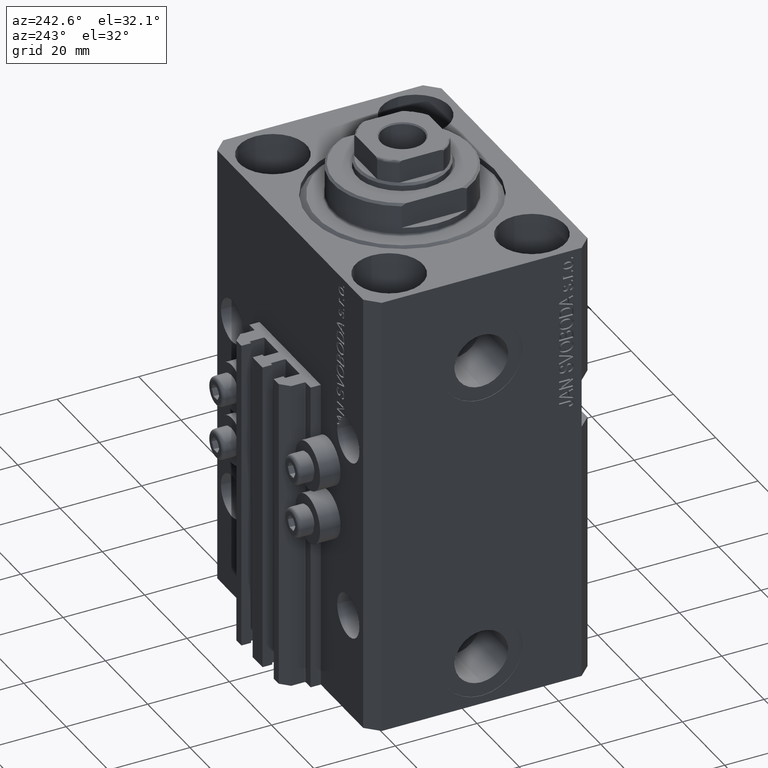
[diagram: clean part render]
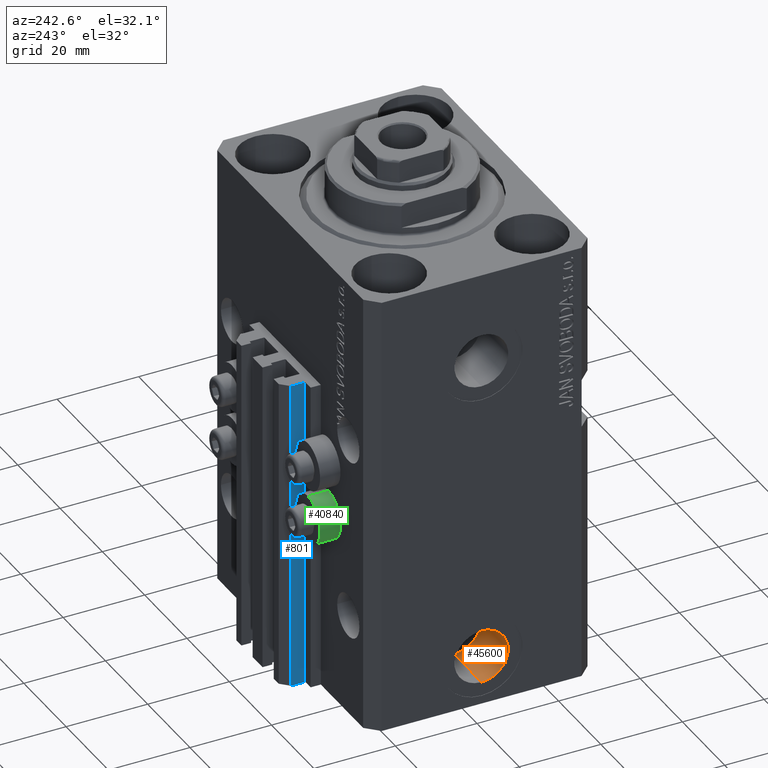
[diagram: same view with three faces highlighted in distinct colors, each labeled with its STEP entity id]
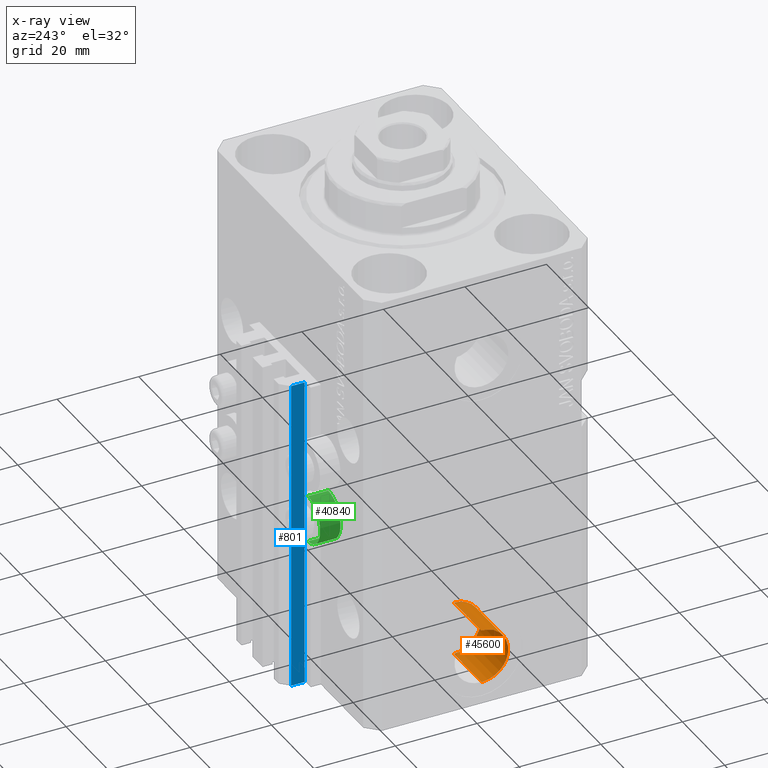
[diagram: x-ray of the same camera — body ghosted, the three highlighted faces saturated]
A machine part, auxiliary view with three faces highlighted in distinct colors.
The next image is the same camera in x-ray (body ghosted, the three faces saturated) — at least one of them is partly hidden behind the body in this view.
Their STEP definitions:

[orange] entity #45600 — the highlighted cylindrical surface (edge-blend (fillet) strip) has radius 6.58 mm, axis along (-1, -0, -0).
#559 = DIRECTION ( 'NONE',  ( -1.000000000000000000, -0.000000000000000000, -0.000000000000000000 ) ) ;
#1021 = VERTEX_POINT ( 'NONE', #26112 ) ;
#1166 = ORIENTED_EDGE ( 'NONE', *, *, #44121, .F. ) ;
#5179 = ORIENTED_EDGE ( 'NONE', *, *, #12921, .T. ) ;
#5721 = EDGE_CURVE ( 'NONE', #33395, #36987, #45605, .T. ) ;
#8991 = CARTESIAN_POINT ( 'NONE',  ( -24.39999999999999147, -1.119572103780510441E-14, -104.5800000000000125 ) ) ;
#10882 = LINE ( 'NONE', #33141, #40199 ) ;
#11686 = VERTEX_POINT ( 'NONE', #33896 ) ;
#12459 = AXIS2_PLACEMENT_3D ( 'NONE', #43227, #44817, #26650 ) ;
#12921 = EDGE_CURVE ( 'NONE', #36987, #11686, #45329, .T. ) ;
#14185 = ORIENTED_EDGE ( 'NONE', *, *, #5721, .T. ) ;
#16424 = DIRECTION ( 'NONE',  ( -1.000000000000000000, -0.000000000000000000, -0.000000000000000000 ) ) ;
#16808 = CARTESIAN_POINT ( 'NONE',  ( -24.39999999999999147, -1.200153863164406187E-14, -98.00000000000000000 ) ) ;
#18854 = AXIS2_PLACEMENT_3D ( 'NONE', #16808, #39049, #27803 ) ;
#21127 = DIRECTION ( 'NONE',  ( -1.000000000000000000, 0.000000000000000000, 0.000000000000000000 ) ) ;
#24064 = CARTESIAN_POINT ( 'NONE',  ( -24.39999999999999147, -1.119572103780510441E-14, -104.5800000000000125 ) ) ;
#24391 = CIRCLE ( 'NONE', #41942, 6.580000000000002736 ) ;
#26112 = CARTESIAN_POINT ( 'NONE',  ( -24.39999999999999147, -1.200153863164406187E-14, -91.42000000000000171 ) ) ;
#26509 = EDGE_LOOP ( 'NONE', ( #39100, #14185, #5179, #1166 ) ) ;
#26650 = DIRECTION ( 'NONE',  ( 0.000000000000000000, 0.000000000000000000, 1.000000000000000000 ) ) ;
#27803 = DIRECTION ( 'NONE',  ( 0.000000000000000000, 0.000000000000000000, 1.000000000000000000 ) ) ;
#28314 = CARTESIAN_POINT ( 'NONE',  ( -24.39999999999999147, -1.200153863164406187E-14, -98.00000000000000000 ) ) ;
#31394 = CYLINDRICAL_SURFACE ( 'NONE', #18854, 6.580000000000002736 ) ;
#32286 = EDGE_CURVE ( 'NONE', #33395, #1021, #24391, .T. ) ;
#33141 = CARTESIAN_POINT ( 'NONE',  ( -24.39999999999999147, -1.200153863164406187E-14, -91.42000000000000171 ) ) ;
#33395 = VERTEX_POINT ( 'NONE', #24064 ) ;
#33896 = CARTESIAN_POINT ( 'NONE',  ( -37.39999999999999147, -1.200153863164406187E-14, -91.42000000000000171 ) ) ;
#35949 = DIRECTION ( 'NONE',  ( 0.000000000000000000, 0.000000000000000000, 1.000000000000000000 ) ) ;
#36987 = VERTEX_POINT ( 'NONE', #41534 ) ;
#38207 = VECTOR ( 'NONE', #16424, 1000.000000000000000 ) ;
#39049 = DIRECTION ( 'NONE',  ( -1.000000000000000000, -0.000000000000000000, -0.000000000000000000 ) ) ;
#39100 = ORIENTED_EDGE ( 'NONE', *, *, #32286, .F. ) ;
#40199 = VECTOR ( 'NONE', #559, 1000.000000000000000 ) ;
#41534 = CARTESIAN_POINT ( 'NONE',  ( -37.39999999999999147, -1.119572103780510441E-14, -104.5800000000000125 ) ) ;
#41942 = AXIS2_PLACEMENT_3D ( 'NONE', #28314, #21127, #35949 ) ;
#42882 = FACE_OUTER_BOUND ( 'NONE', #26509, .T. ) ;
#43227 = CARTESIAN_POINT ( 'NONE',  ( -37.39999999999999147, -1.200153863164406187E-14, -98.00000000000000000 ) ) ;
#44121 = EDGE_CURVE ( 'NONE', #1021, #11686, #10882, .T. ) ;
#44817 = DIRECTION ( 'NONE',  ( -1.000000000000000000, 0.000000000000000000, 0.000000000000000000 ) ) ;
#45329 = CIRCLE ( 'NONE', #12459, 6.580000000000002736 ) ;
#45600 = ADVANCED_FACE ( 'NONE', ( #42882 ), #31394, .F. ) ;
#45605 = LINE ( 'NONE', #8991, #38207 ) ;

[blue] entity #801 — the highlighted planar face has unit normal (-1, 0, 0).
#801 = ADVANCED_FACE ( 'NONE', ( #7485 ), #44572, .T. ) ;
#2287 = ORIENTED_EDGE ( 'NONE', *, *, #17480, .F. ) ;
#2614 = CARTESIAN_POINT ( 'NONE',  ( -12.00000000000000000, 33.49999999999998579, -33.00000000000000000 ) ) ;
#3193 = ORIENTED_EDGE ( 'NONE', *, *, #39900, .T. ) ;
#3706 = CARTESIAN_POINT ( 'NONE',  ( -12.00000000000000000, 33.49999999999998579, -110.0000000000000000 ) ) ;
#7485 = FACE_OUTER_BOUND ( 'NONE', #17162, .T. ) ;
#8016 = DIRECTION ( 'NONE',  ( 0.000000000000000000, 0.000000000000000000, 1.000000000000000000 ) ) ;
#8425 = VERTEX_POINT ( 'NONE', #39893 ) ;
#12838 = ORIENTED_EDGE ( 'NONE', *, *, #40805, .F. ) ;
#15686 = CARTESIAN_POINT ( 'NONE',  ( -12.00000000000000000, 33.49999999999998579, -110.0000000000000000 ) ) ;
#16773 = DIRECTION ( 'NONE',  ( 0.000000000000000000, -1.000000000000000000, 0.000000000000000000 ) ) ;
#17162 = EDGE_LOOP ( 'NONE', ( #12838, #2287, #39340, #3193 ) ) ;
#17480 = EDGE_CURVE ( 'NONE', #8425, #35933, #25750, .T. ) ;
#18750 = DIRECTION ( 'NONE',  ( 0.000000000000000000, 0.000000000000000000, 1.000000000000000000 ) ) ;
#21867 = CARTESIAN_POINT ( 'NONE',  ( -12.00000000000000000, 33.49999999999998579, -110.0000000000000000 ) ) ;
#24283 = AXIS2_PLACEMENT_3D ( 'NONE', #21867, #36453, #18750 ) ;
#24724 = VERTEX_POINT ( 'NONE', #34669 ) ;
#25750 = LINE ( 'NONE', #3706, #33247 ) ;
#27533 = CARTESIAN_POINT ( 'NONE',  ( -12.00000000000000000, 33.49999999999998579, -33.00000000000000000 ) ) ;
#27543 = LINE ( 'NONE', #2614, #41630 ) ;
#28250 = DIRECTION ( 'NONE',  ( 0.000000000000000000, 0.000000000000000000, 1.000000000000000000 ) ) ;
#29081 = VERTEX_POINT ( 'NONE', #36825 ) ;
#30518 = LINE ( 'NONE', #15686, #33639 ) ;
#33247 = VECTOR ( 'NONE', #8016, 1000.000000000000000 ) ;
#33639 = VECTOR ( 'NONE', #37936, 1000.000000000000000 ) ;
#34669 = CARTESIAN_POINT ( 'NONE',  ( -12.00000000000000000, 30.19999999999999218, -33.00000000000000000 ) ) ;
#34944 = CARTESIAN_POINT ( 'NONE',  ( -12.00000000000000000, 30.19999999999999218, -110.0000000000000000 ) ) ;
#35933 = VERTEX_POINT ( 'NONE', #27533 ) ;
#36236 = VECTOR ( 'NONE', #28250, 1000.000000000000000 ) ;
#36283 = EDGE_CURVE ( 'NONE', #8425, #29081, #30518, .T. ) ;
#36453 = DIRECTION ( 'NONE',  ( -1.000000000000000000, 0.000000000000000000, 0.000000000000000000 ) ) ;
#36825 = CARTESIAN_POINT ( 'NONE',  ( -12.00000000000000000, 30.19999999999999218, -110.0000000000000000 ) ) ;
#37936 = DIRECTION ( 'NONE',  ( 0.000000000000000000, -1.000000000000000000, 0.000000000000000000 ) ) ;
#38299 = LINE ( 'NONE', #34944, #36236 ) ;
#39340 = ORIENTED_EDGE ( 'NONE', *, *, #36283, .T. ) ;
#39893 = CARTESIAN_POINT ( 'NONE',  ( -12.00000000000000000, 33.49999999999998579, -110.0000000000000000 ) ) ;
#39900 = EDGE_CURVE ( 'NONE', #29081, #24724, #38299, .T. ) ;
#40805 = EDGE_CURVE ( 'NONE', #35933, #24724, #27543, .T. ) ;
#41630 = VECTOR ( 'NONE', #16773, 1000.000000000000000 ) ;
#44572 = PLANE ( 'NONE',  #24283 ) ;

[green] entity #40840 — the highlighted cylindrical surface (edge-blend (fillet) strip) has radius 5.8 mm, axis along (0, 1, 0).
#1220 = VERTEX_POINT ( 'NONE', #6432 ) ;
#1421 = CARTESIAN_POINT ( 'NONE',  ( -18.00000000000000355, 32.49999999996100541, -69.79999999999999716 ) ) ;
#6155 = EDGE_LOOP ( 'NONE', ( #18578, #42711, #29548, #30714 ) ) ;
#6432 = CARTESIAN_POINT ( 'NONE',  ( -18.00000000000000355, 32.49999999996100541, -69.79999999999999716 ) ) ;
#7412 = CARTESIAN_POINT ( 'NONE',  ( -18.00000000000000355, 27.50000000000000355, -69.79999999999999716 ) ) ;
#7628 = DIRECTION ( 'NONE',  ( 0.000000000000000000, 0.000000000000000000, -1.000000000000000000 ) ) ;
#11294 = CIRCLE ( 'NONE', #41087, 5.799999999999999822 ) ;
#15638 = CARTESIAN_POINT ( 'NONE',  ( -18.00000000000000355, 27.50000000000000355, -58.20000000000000284 ) ) ;
#16111 = VERTEX_POINT ( 'NONE', #7412 ) ;
#16901 = DIRECTION ( 'NONE',  ( -0.000000000000000000, -1.000000000000000000, -0.000000000000000000 ) ) ;
#18578 = ORIENTED_EDGE ( 'NONE', *, *, #26712, .F. ) ;
#18648 = VERTEX_POINT ( 'NONE', #27380 ) ;
#19169 = DIRECTION ( 'NONE',  ( 0.000000000000000000, 1.000000000000000000, 0.000000000000000000 ) ) ;
#19722 = EDGE_CURVE ( 'NONE', #37328, #18648, #31635, .T. ) ;
#20724 = CARTESIAN_POINT ( 'NONE',  ( -18.00000000000000355, 32.49999999996100541, -64.00000000000000000 ) ) ;
#20990 = VECTOR ( 'NONE', #31157, 1000.000000000000000 ) ;
#24901 = DIRECTION ( 'NONE',  ( 0.000000000000000000, 1.000000000000000000, 0.000000000000000000 ) ) ;
#25366 = FACE_OUTER_BOUND ( 'NONE', #6155, .T. ) ;
#26712 = EDGE_CURVE ( 'NONE', #37328, #16111, #11294, .T. ) ;
#27380 = CARTESIAN_POINT ( 'NONE',  ( -18.00000000000000355, 32.49999999996100541, -58.20000000000000284 ) ) ;
#29548 = ORIENTED_EDGE ( 'NONE', *, *, #37172, .T. ) ;
#30638 = LINE ( 'NONE', #1421, #45837 ) ;
#30714 = ORIENTED_EDGE ( 'NONE', *, *, #31195, .F. ) ;
#30795 = DIRECTION ( 'NONE',  ( -0.000000000000000000, -1.000000000000000000, -0.000000000000000000 ) ) ;
#31004 = DIRECTION ( 'NONE',  ( 0.000000000000000000, 0.000000000000000000, -1.000000000000000000 ) ) ;
#31157 = DIRECTION ( 'NONE',  ( 0.000000000000000000, 1.000000000000000000, 0.000000000000000000 ) ) ;
#31195 = EDGE_CURVE ( 'NONE', #16111, #1220, #30638, .T. ) ;
#31475 = AXIS2_PLACEMENT_3D ( 'NONE', #20724, #16901, #31004 ) ;
#31635 = LINE ( 'NONE', #39053, #20990 ) ;
#32781 = CARTESIAN_POINT ( 'NONE',  ( -18.00000000000000355, 32.49999999996100541, -64.00000000000000000 ) ) ;
#34542 = CIRCLE ( 'NONE', #31475, 5.799999999999999822 ) ;
#36830 = CYLINDRICAL_SURFACE ( 'NONE', #46213, 5.799999999999999822 ) ;
#37172 = EDGE_CURVE ( 'NONE', #18648, #1220, #34542, .T. ) ;
#37328 = VERTEX_POINT ( 'NONE', #15638 ) ;
#39053 = CARTESIAN_POINT ( 'NONE',  ( -18.00000000000000355, 32.49999999996100541, -58.20000000000000284 ) ) ;
#40840 = ADVANCED_FACE ( 'NONE', ( #25366 ), #36830, .T. ) ;
#41087 = AXIS2_PLACEMENT_3D ( 'NONE', #41101, #30795, #45394 ) ;
#41101 = CARTESIAN_POINT ( 'NONE',  ( -18.00000000000000355, 27.50000000000000355, -64.00000000000000000 ) ) ;
#42711 = ORIENTED_EDGE ( 'NONE', *, *, #19722, .T. ) ;
#45394 = DIRECTION ( 'NONE',  ( 0.000000000000000000, 0.000000000000000000, -1.000000000000000000 ) ) ;
#45837 = VECTOR ( 'NONE', #19169, 1000.000000000000000 ) ;
#46213 = AXIS2_PLACEMENT_3D ( 'NONE', #32781, #24901, #7628 ) ;